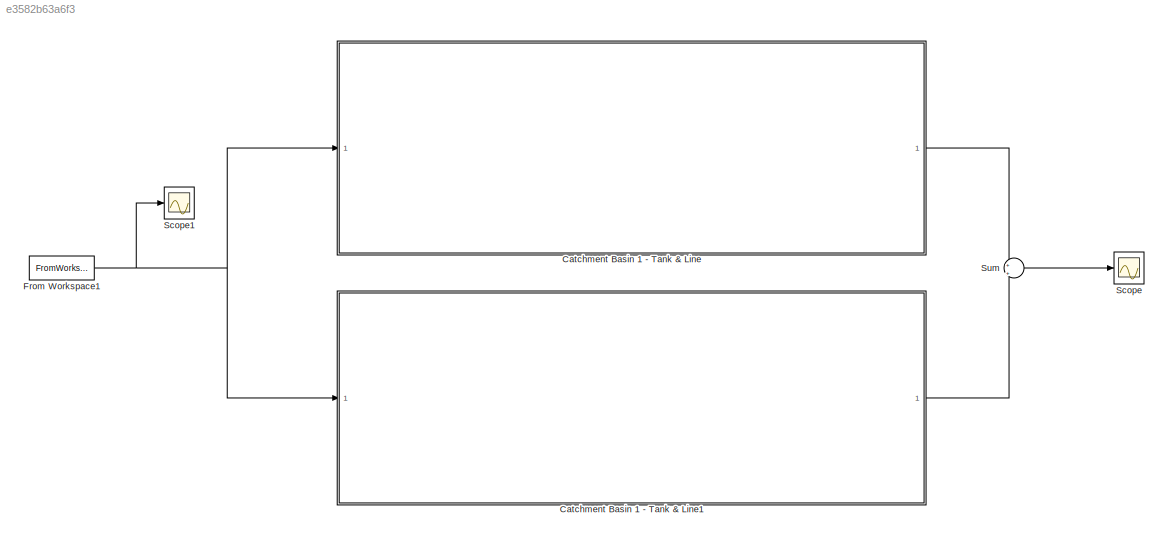
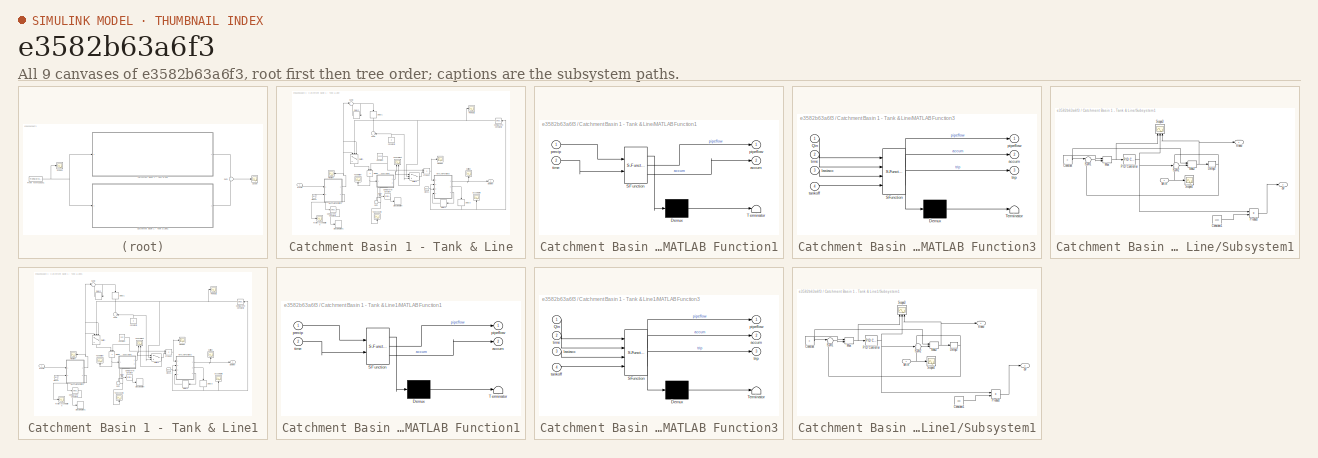
[diagram: thumbnail index - all 9 canvases of the model, root first then tree order]
MODEL slx_e3582b63a6f3
KIND model
CONFIG AbsTol = auto
CONFIG EnableMultiTasking = off
CONFIG FixedStep = auto
CONFIG MaxStep = auto
CONFIG MinStep = auto
CONFIG RelTol = 1e-3
CONFIG SampleTimeConstraint = Unconstrained
CONFIG Solver = VariableStepAuto
CONFIG SolverName = VariableStepAuto
CONFIG StartTime = 0.0
CONFIG StopTime = 359
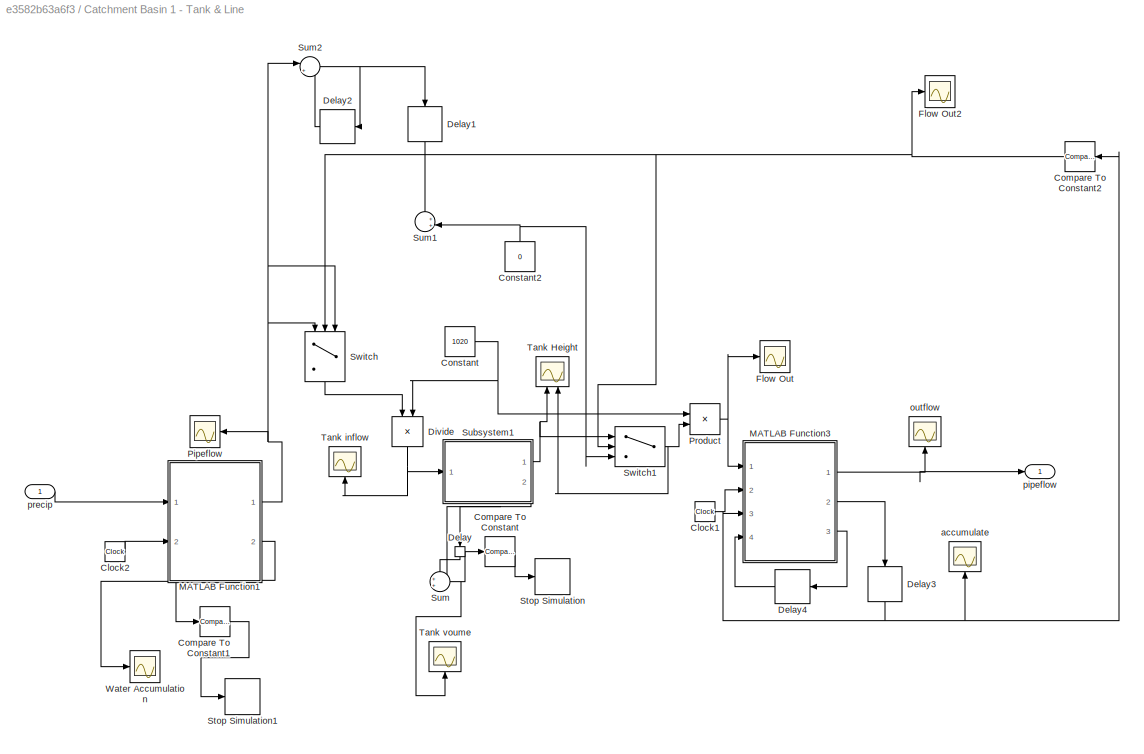
BLOCK [SubSystem] Catchment Basin 1 - Tank & Line
  Ports = [1, 1]
  RequestExecContextInheritance = off
BLOCK [Scope] Catchment Basin 1 - Tank & Line/ Pipeflow
  Floating = off
  NumInputPorts = 1
  Ports = [1]
  ScopeSpecificationString = Simulink.scopes.TimeScopeBlockCfg('CurrentConfiguration', extmgr.ConfigurationSet(extmgr.Configuration('Core','General UI',true),extmgr.Configuration('Core','Source UI',true),extmgr.Configuration('Sources','WiredSimulink',true,'DataLoggingVariableName','ScopeData3'),extmgr.Configuration('Visuals','Time Domain',true,'SerializedDisplays',{struct('MinYLimReal','-0.00186','MaxYLimReal','0.01489','YLab...<+1412ch>
BLOCK [Clock] Catchment Basin 1 - Tank & Line/Clock1
BLOCK [Clock] Catchment Basin 1 - Tank & Line/Clock2
BLOCK [Reference] Catchment Basin 1 - Tank & Line/Compare To Constant  REF=simulink/Logic and Bit
Operations/Compare
To Constant
  Ports = [1, 1]
  SourceBlock = simulink/Logic and Bit\nOperations/Compare\nTo Constant
  SourceProductBaseCode = SL
  SourceType = Compare To Constant
BLOCK [Reference] Catchment Basin 1 - Tank & Line/Compare To Constant1  REF=simulink/Logic and Bit
Operations/Compare
To Constant
  Commented = on
  Ports = [1, 1]
  SourceBlock = simulink/Logic and Bit\nOperations/Compare\nTo Constant
  SourceProductBaseCode = SL
  SourceType = Compare To Constant
BLOCK [Reference] Catchment Basin 1 - Tank & Line/Compare To Constant2  REF=simulink/Logic and Bit
Operations/Compare
To Constant
  Ports = [1, 1]
  SourceBlock = simulink/Logic and Bit\nOperations/Compare\nTo Constant
  SourceProductBaseCode = SL
  SourceType = Compare To Constant
BLOCK [Constant] Catchment Basin 1 - Tank & Line/Constant
  Value = 1020
BLOCK [Constant] Catchment Basin 1 - Tank & Line/Constant2
  NameLocation = right
  SampleTime = 1
  Value = 0
BLOCK [Delay] Catchment Basin 1 - Tank & Line/Delay
  DelayLength = 1
  InitialCondition = 0
  InputPortMap = u0
  NameLocation = left
  Ports = [1, 1]
BLOCK [Delay] Catchment Basin 1 - Tank & Line/Delay1
  DelayLength = 5
  InitialCondition = 0
  InputPortMap = u0
  NameLocation = left
  Ports = [1, 1]
BLOCK [Delay] Catchment Basin 1 - Tank & Line/Delay2
  DelayLength = 1
  InitialCondition = 0
  InputPortMap = u0
  Ports = [1, 1]
BLOCK [Delay] Catchment Basin 1 - Tank & Line/Delay3
  DelayLength = 1
  InitialCondition = 0
  InputPortMap = u0
  NameLocation = right
  Ports = [1, 1]
BLOCK [Delay] Catchment Basin 1 - Tank & Line/Delay4
  DelayLength = 1
  InitialCondition = 0
  InputPortMap = u0
  Ports = [1, 1]
BLOCK [Product] Catchment Basin 1 - Tank & Line/Divide
  Inputs = */
  NameLocation = left
  Ports = [2, 1]
BLOCK [Scope] Catchment Basin 1 - Tank & Line/Flow Out
  Floating = off
  NumInputPorts = 1
  Ports = [1]
  ScopeSpecificationString = Simulink.scopes.TimeScopeBlockCfg('CurrentConfiguration', extmgr.ConfigurationSet(extmgr.Configuration('Core','General UI',true),extmgr.Configuration('Core','Source UI',true),extmgr.Configuration('Sources','WiredSimulink',true,'DataLoggingVariableName','ScopeData1'),extmgr.Configuration('Visuals','Time Domain',true,'SerializedDisplays',{struct('MinYLimReal','-0.00806','MaxYLimReal','0.07253','YLab...<+1420ch>
BLOCK [Scope] Catchment Basin 1 - Tank & Line/Flow Out2
  Floating = off
  NumInputPorts = 1
  Ports = [1]
  ScopeSpecificationString = Simulink.scopes.TimeScopeBlockCfg('CurrentConfiguration', extmgr.ConfigurationSet(extmgr.Configuration('Core','General UI',true),extmgr.Configuration('Core','Source UI',true),extmgr.Configuration('Sources','WiredSimulink',true,'DataLoggingVariableName','ScopeData1'),extmgr.Configuration('Visuals','Time Domain',true,'SerializedDisplays',{struct('MinYLimReal','0.9','MaxYLimReal','1.1','YLabelReal','...<+1409ch>
BLOCK [SubSystem] Catchment Basin 1 - Tank & Line/MATLAB Function1
  ErrorFcn = Stateflow.Translate.translate
  PermitHierarchicalResolution = ExplicitOnly
  Ports = [2, 2]
  RequestExecContextInheritance = off
  SFBlockType = MATLAB Function
  TreatAsAtomicUnit = on
BLOCK [Demux] Catchment Basin 1 - Tank & Line/MATLAB Function1/ Demux 
  Outputs = 1
  Ports = [1, 1]
BLOCK [S-Function] Catchment Basin 1 - Tank & Line/MATLAB Function1/ SFunction 
  EnableBusSupport = on
  FunctionName = sf_sfun
  Parameters = R,S,basin1,k,n
  PortCounts = [2 3]
  Ports = [2, 3]
  SFcnIsStateOwnerBlock = off
  SFunctionDeploymentMode = off
  Tag = Stateflow S-Function 1
BLOCK [Terminator] Catchment Basin 1 - Tank & Line/MATLAB Function1/ Terminator 
BLOCK [Outport] Catchment Basin 1 - Tank & Line/MATLAB Function1/accum
  Port = 2
BLOCK [Outport] Catchment Basin 1 - Tank & Line/MATLAB Function1/pipeflow
BLOCK [Inport] Catchment Basin 1 - Tank & Line/MATLAB Function1/precip
BLOCK [Inport] Catchment Basin 1 - Tank & Line/MATLAB Function1/time
  Port = 2
BLOCK [SubSystem] Catchment Basin 1 - Tank & Line/MATLAB Function3
  ErrorFcn = Stateflow.Translate.translate
  PermitHierarchicalResolution = ExplicitOnly
  Ports = [4, 3]
  RequestExecContextInheritance = off
  SFBlockType = MATLAB Function
  TreatAsAtomicUnit = on
BLOCK [Demux] Catchment Basin 1 - Tank & Line/MATLAB Function3/ Demux 
  Outputs = 1
  Ports = [1, 1]
BLOCK [S-Function] Catchment Basin 1 - Tank & Line/MATLAB Function3/ SFunction 
  EnableBusSupport = on
  FunctionName = sf_sfun
  Parameters = R,S,k,n
  PortCounts = [4 4]
  Ports = [4, 4]
  SFcnIsStateOwnerBlock = off
  SFunctionDeploymentMode = off
  Tag = Stateflow S-Function 5
BLOCK [Terminator] Catchment Basin 1 - Tank & Line/MATLAB Function3/ Terminator 
BLOCK [Inport] Catchment Basin 1 - Tank & Line/MATLAB Function3/Qin
BLOCK [Outport] Catchment Basin 1 - Tank & Line/MATLAB Function3/accum
  Port = 2
BLOCK [Inport] Catchment Basin 1 - Tank & Line/MATLAB Function3/lastacc
  Port = 3
BLOCK [Outport] Catchment Basin 1 - Tank & Line/MATLAB Function3/pipeflow
BLOCK [Inport] Catchment Basin 1 - Tank & Line/MATLAB Function3/tankoff
  Port = 4
BLOCK [Inport] Catchment Basin 1 - Tank & Line/MATLAB Function3/time
  Port = 2
BLOCK [Outport] Catchment Basin 1 - Tank & Line/MATLAB Function3/trip
  Port = 3
BLOCK [Product] Catchment Basin 1 - Tank & Line/Product
  Ports = [2, 1]
BLOCK [Stop] Catchment Basin 1 - Tank & Line/Stop Simulation
BLOCK [Stop] Catchment Basin 1 - Tank & Line/Stop Simulation1
  Commented = on
BLOCK [SubSystem] Catchment Basin 1 - Tank & Line/Subsystem1
  PortSchema = {"entries":[{"content":{"sides":[{"content":{"connectorIds":["In1"]},"type":"ConnectorPlacement.EquallySpacedRectSide","uuid":"49521410-f26e-428f-a0f4-6065ef8c5de4"},{"content":{"connectorIds":["Out1"],"side":"RIGHT"},"type":"ConnectorPlacement.EquallySpacedRectSide","uuid":"23e51712-c361-47eb-a12a-34fba58dacf0"},{"content":{"connectorIds":[],"side":"TOP"},"type":"ConnectorPlacement.EquallySpacedR...<+392ch>
  Ports = [1, 2]
  RequestExecContextInheritance = off
BLOCK [Constant] Catchment Basin 1 - Tank & Line/Subsystem1/Constant
  Value = 0
BLOCK [Constant] Catchment Basin 1 - Tank & Line/Subsystem1/Constant1
  Value = 1020
BLOCK [Delay] Catchment Basin 1 - Tank & Line/Subsystem1/Delay2
  DelayLength = 1
  InitialCondition = 0
  InputPortMap = u0
  Ports = [1, 1]
BLOCK [MinMax] Catchment Basin 1 - Tank & Line/Subsystem1/Max
  Function = max
  Inputs = 2
  Ports = [2, 1]
BLOCK [MinMax] Catchment Basin 1 - Tank & Line/Subsystem1/Max2
  Function = max
  Inputs = 2
  Ports = [2, 1]
BLOCK [Reference] Catchment Basin 1 - Tank & Line/Subsystem1/PID Controller  REF=simulink/Continuous/PID Controller
  Ports = [1, 1]
  SourceBlock = simulink/Continuous/PID Controller
  SourceProductBaseCode = SL
  SourceType = PID 1dof
BLOCK [Product] Catchment Basin 1 - Tank & Line/Subsystem1/Product
  Ports = [2, 1]
BLOCK [Scope] Catchment Basin 1 - Tank & Line/Subsystem1/Scope3
  Floating = off
  NameLocation = right
  NumInputPorts = 3
  Ports = [3]
  ScopeSpecificationString = Simulink.scopes.TimeScopeBlockCfg('CurrentConfiguration', extmgr.ConfigurationSet(extmgr.Configuration('Core','General UI',true),extmgr.Configuration('Core','Source UI',true),extmgr.Configuration('Sources','WiredSimulink',true,'DataLoggingVariableName','ScopeData3'),extmgr.Configuration('Visuals','Time Domain',true,'SerializedDisplays',{struct('MinYLimReal','-0.000008','MaxYLimReal','0.000071','YL...<+1423ch>
BLOCK [Scope] Catchment Basin 1 - Tank & Line/Subsystem1/Scope4
  Floating = off
  NumInputPorts = 1
  Ports = [1]
  ScopeSpecificationString = Simulink.scopes.TimeScopeBlockCfg('CurrentConfiguration', extmgr.ConfigurationSet(extmgr.Configuration('Core','General UI',true),extmgr.Configuration('Core','Source UI',true),extmgr.Configuration('Sources','WiredSimulink',true,'DataLoggingVariableName','ScopeData4'),extmgr.Configuration('Visuals','Time Domain',true,'SerializedDisplays',{struct('MinYLimReal','-0.000002','MaxYLimReal','0.000015','YL...<+1435ch>
BLOCK [Sum] Catchment Basin 1 - Tank & Line/Subsystem1/Sum1
  Inputs = |-+
  OutMin = 0
  Ports = [2, 1]
BLOCK [Sum] Catchment Basin 1 - Tank & Line/Subsystem1/Sum2
  Inputs = +-+
  OutMin = 0
  Ports = [3, 1]
BLOCK [Outport] Catchment Basin 1 - Tank & Line/Subsystem1/dV
  Port = 2
BLOCK [Inport] Catchment Basin 1 - Tank & Line/Subsystem1/dh in
BLOCK [Outport] Catchment Basin 1 - Tank & Line/Subsystem1/h new
BLOCK [Sum] Catchment Basin 1 - Tank & Line/Sum
  Inputs = ++|
  Ports = [2, 1]
BLOCK [Sum] Catchment Basin 1 - Tank & Line/Sum1
  Inputs = ++|
  Ports = [2, 1]
BLOCK [Sum] Catchment Basin 1 - Tank & Line/Sum2
  Inputs = |++
  Ports = [2, 1]
BLOCK [Switch] Catchment Basin 1 - Tank & Line/Switch
  Criteria = u2 > Threshold
  InputSameDT = off
  NameLocation = right
  SaturateOnIntegerOverflow = off
BLOCK [Switch] Catchment Basin 1 - Tank & Line/Switch1
  Criteria = u2 > Threshold
  InputSameDT = off
  SaturateOnIntegerOverflow = off
BLOCK [Scope] Catchment Basin 1 - Tank & Line/Tank Height
  Floating = off
  NameLocation = right
  NumInputPorts = 2
  Ports = [2]
  ScopeSpecificationString = Simulink.scopes.TimeScopeBlockCfg('CurrentConfiguration', extmgr.ConfigurationSet(extmgr.Configuration('Core','General UI',true),extmgr.Configuration('Core','Source UI',true),extmgr.Configuration('Sources','WiredSimulink',true,'DataLoggingVariableName','ScopeData2'),extmgr.Configuration('Visuals','Time Domain',true,'SerializedDisplays',{struct('MinYLimReal','-0.000008','MaxYLimReal','0.000071','YL...<+1417ch>
BLOCK [Scope] Catchment Basin 1 - Tank & Line/Tank inflow
  Floating = off
  NameLocation = right
  NumInputPorts = 1
  Ports = [1]
  ScopeSpecificationString = Simulink.scopes.TimeScopeBlockCfg('CurrentConfiguration', extmgr.ConfigurationSet(extmgr.Configuration('Core','General UI',true),extmgr.Configuration('Core','Source UI',true),extmgr.Configuration('Sources','WiredSimulink',true,'DataLoggingVariableName','ScopeData4'),extmgr.Configuration('Visuals','Time Domain',true,'SerializedDisplays',{struct('MinYLimReal','-0.000002','MaxYLimReal','0.000015','YL...<+1402ch>
BLOCK [Scope] Catchment Basin 1 - Tank & Line/Tank voume
  Floating = off
  NameLocation = right
  NumInputPorts = 1
  Ports = [1]
  ScopeSpecificationString = Simulink.scopes.TimeScopeBlockCfg('CurrentConfiguration', extmgr.ConfigurationSet(extmgr.Configuration('Core','General UI',true),extmgr.Configuration('Core','Source UI',true),extmgr.Configuration('Sources','WiredSimulink',true,'DataLoggingVariableName','ScopeData5'),extmgr.Configuration('Visuals','Time Domain',true,'SerializedDisplays',{struct('MinYLimReal','-0.00335','MaxYLimReal','0.03017','YLab...<+1417ch>
BLOCK [Scope] Catchment Basin 1 - Tank & Line/Water Accumulation
  Floating = off
  NumInputPorts = 1
  Ports = [1]
  ScopeSpecificationString = Simulink.scopes.TimeScopeBlockCfg('CurrentConfiguration', extmgr.ConfigurationSet(extmgr.Configuration('Core','General UI',true),extmgr.Configuration('Core','Source UI',true),extmgr.Configuration('Sources','WiredSimulink',true,'DataLoggingVariableName','ScopeData4'),extmgr.Configuration('Visuals','Time Domain',true,'SerializedDisplays',{struct('MinYLimReal','6076139.76042','MaxYLimReal','278879276...<+1482ch>
BLOCK [Scope] Catchment Basin 1 - Tank & Line/accumulate
  Floating = off
  NameLocation = right
  NumInputPorts = 1
  Ports = [1]
  ScopeSpecificationString = Simulink.scopes.TimeScopeBlockCfg('CurrentConfiguration', extmgr.ConfigurationSet(extmgr.Configuration('Core','General UI',true),extmgr.Configuration('Core','Source UI',true),extmgr.Configuration('Sources','WiredSimulink',true,'DataLoggingVariableName','ScopeData3'),extmgr.Configuration('Visuals','Time Domain',true,'SerializedDisplays',{struct('MinYLimReal','-1.86851','MaxYLimReal','16.81657','YLa...<+1424ch>
BLOCK [Scope] Catchment Basin 1 - Tank & Line/outflow
  Floating = off
  NameLocation = right
  NumInputPorts = 1
  Ports = [1]
  ScopeSpecificationString = Simulink.scopes.TimeScopeBlockCfg('CurrentConfiguration', extmgr.ConfigurationSet(extmgr.Configuration('Core','General UI',true),extmgr.Configuration('Core','Source UI',true),extmgr.Configuration('Sources','WiredSimulink',true,'DataLoggingVariableName','ScopeData2'),extmgr.Configuration('Visuals','Time Domain',true,'SerializedDisplays',{struct('MinYLimReal','-0.00165','MaxYLimReal','0.01486','YLab...<+1413ch>
BLOCK [Outport] Catchment Basin 1 - Tank & Line/pipeflow
BLOCK [Inport] Catchment Basin 1 - Tank & Line/precip
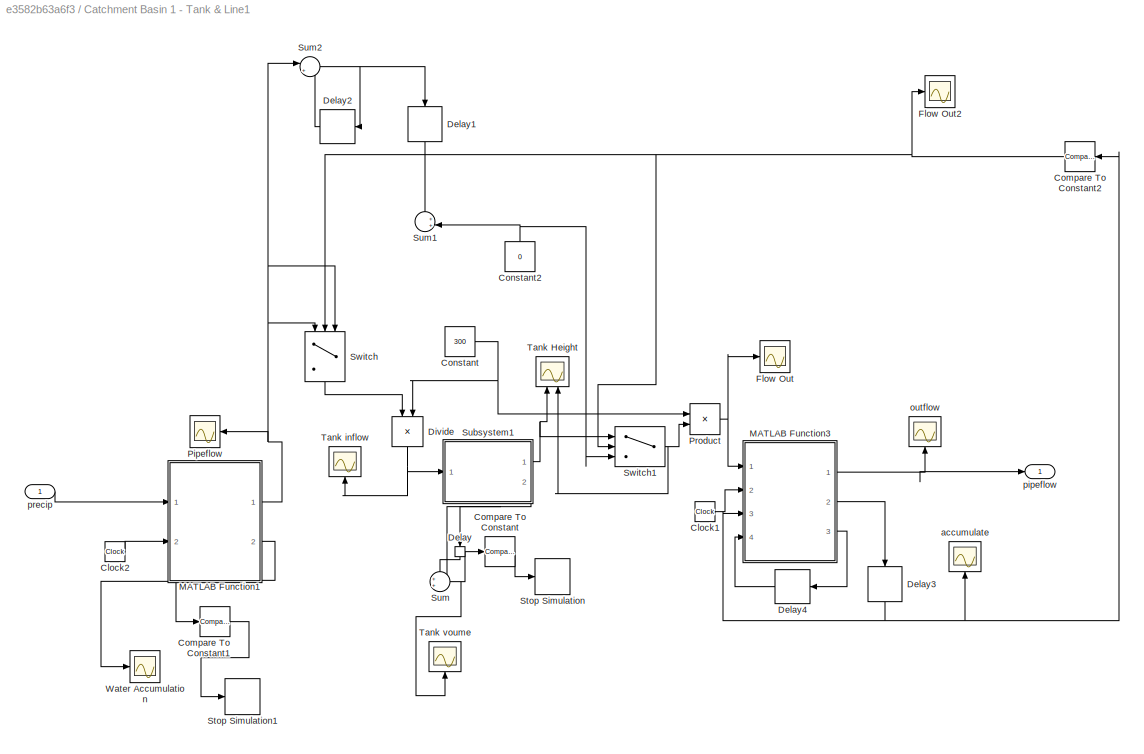
BLOCK [SubSystem] Catchment Basin 1 - Tank & Line1
  Ports = [1, 1]
  RequestExecContextInheritance = off
BLOCK [Scope] Catchment Basin 1 - Tank & Line1/ Pipeflow
  Floating = off
  NumInputPorts = 1
  Ports = [1]
  ScopeSpecificationString = Simulink.scopes.TimeScopeBlockCfg('CurrentConfiguration', extmgr.ConfigurationSet(extmgr.Configuration('Core','General UI',true),extmgr.Configuration('Core','Source UI',true),extmgr.Configuration('Sources','WiredSimulink',true,'DataLoggingVariableName','ScopeData3'),extmgr.Configuration('Visuals','Time Domain',true,'SerializedDisplays',{struct('MinYLimReal','-0.00186','MaxYLimReal','0.01489','YLab...<+1412ch>
BLOCK [Clock] Catchment Basin 1 - Tank & Line1/Clock1
BLOCK [Clock] Catchment Basin 1 - Tank & Line1/Clock2
BLOCK [Reference] Catchment Basin 1 - Tank & Line1/Compare To Constant  REF=simulink/Logic and Bit
Operations/Compare
To Constant
  Ports = [1, 1]
  SourceBlock = simulink/Logic and Bit\nOperations/Compare\nTo Constant
  SourceProductBaseCode = SL
  SourceType = Compare To Constant
BLOCK [Reference] Catchment Basin 1 - Tank & Line1/Compare To Constant1  REF=simulink/Logic and Bit
Operations/Compare
To Constant
  Commented = on
  Ports = [1, 1]
  SourceBlock = simulink/Logic and Bit\nOperations/Compare\nTo Constant
  SourceProductBaseCode = SL
  SourceType = Compare To Constant
BLOCK [Reference] Catchment Basin 1 - Tank & Line1/Compare To Constant2  REF=simulink/Logic and Bit
Operations/Compare
To Constant
  Ports = [1, 1]
  SourceBlock = simulink/Logic and Bit\nOperations/Compare\nTo Constant
  SourceProductBaseCode = SL
  SourceType = Compare To Constant
BLOCK [Constant] Catchment Basin 1 - Tank & Line1/Constant
  Value = 300
BLOCK [Constant] Catchment Basin 1 - Tank & Line1/Constant2
  NameLocation = right
  SampleTime = 1
  Value = 0
BLOCK [Delay] Catchment Basin 1 - Tank & Line1/Delay
  DelayLength = 1
  InitialCondition = 0
  InputPortMap = u0
  NameLocation = left
  Ports = [1, 1]
BLOCK [Delay] Catchment Basin 1 - Tank & Line1/Delay1
  DelayLength = 5
  InitialCondition = 0
  InputPortMap = u0
  NameLocation = left
  Ports = [1, 1]
BLOCK [Delay] Catchment Basin 1 - Tank & Line1/Delay2
  DelayLength = 1
  InitialCondition = 0
  InputPortMap = u0
  Ports = [1, 1]
BLOCK [Delay] Catchment Basin 1 - Tank & Line1/Delay3
  DelayLength = 1
  InitialCondition = 0
  InputPortMap = u0
  NameLocation = right
  Ports = [1, 1]
BLOCK [Delay] Catchment Basin 1 - Tank & Line1/Delay4
  DelayLength = 1
  InitialCondition = 0
  InputPortMap = u0
  Ports = [1, 1]
BLOCK [Product] Catchment Basin 1 - Tank & Line1/Divide
  Inputs = */
  NameLocation = left
  Ports = [2, 1]
BLOCK [Scope] Catchment Basin 1 - Tank & Line1/Flow Out
  Floating = off
  NumInputPorts = 1
  Ports = [1]
  ScopeSpecificationString = Simulink.scopes.TimeScopeBlockCfg('CurrentConfiguration', extmgr.ConfigurationSet(extmgr.Configuration('Core','General UI',true),extmgr.Configuration('Core','Source UI',true),extmgr.Configuration('Sources','WiredSimulink',true,'DataLoggingVariableName','ScopeData1'),extmgr.Configuration('Visuals','Time Domain',true,'SerializedDisplays',{struct('MinYLimReal','-0.00806','MaxYLimReal','0.07253','YLab...<+1420ch>
BLOCK [Scope] Catchment Basin 1 - Tank & Line1/Flow Out2
  Floating = off
  NumInputPorts = 1
  Ports = [1]
  ScopeSpecificationString = Simulink.scopes.TimeScopeBlockCfg('CurrentConfiguration', extmgr.ConfigurationSet(extmgr.Configuration('Core','General UI',true),extmgr.Configuration('Core','Source UI',true),extmgr.Configuration('Sources','WiredSimulink',true,'DataLoggingVariableName','ScopeData1'),extmgr.Configuration('Visuals','Time Domain',true,'SerializedDisplays',{struct('MinYLimReal','0.9','MaxYLimReal','1.1','YLabelReal','...<+1409ch>
BLOCK [SubSystem] Catchment Basin 1 - Tank & Line1/MATLAB Function1
  ErrorFcn = Stateflow.Translate.translate
  PermitHierarchicalResolution = ExplicitOnly
  Ports = [2, 2]
  RequestExecContextInheritance = off
  SFBlockType = MATLAB Function
  TreatAsAtomicUnit = on
BLOCK [Demux] Catchment Basin 1 - Tank & Line1/MATLAB Function1/ Demux 
  Outputs = 1
  Ports = [1, 1]
BLOCK [S-Function] Catchment Basin 1 - Tank & Line1/MATLAB Function1/ SFunction 
  EnableBusSupport = on
  FunctionName = sf_sfun
  Parameters = R,S,basin1,k,n
  PortCounts = [2 3]
  Ports = [2, 3]
  SFcnIsStateOwnerBlock = off
  SFunctionDeploymentMode = off
  Tag = Stateflow S-Function 2
BLOCK [Terminator] Catchment Basin 1 - Tank & Line1/MATLAB Function1/ Terminator 
BLOCK [Outport] Catchment Basin 1 - Tank & Line1/MATLAB Function1/accum
  Port = 2
BLOCK [Outport] Catchment Basin 1 - Tank & Line1/MATLAB Function1/pipeflow
BLOCK [Inport] Catchment Basin 1 - Tank & Line1/MATLAB Function1/precip
BLOCK [Inport] Catchment Basin 1 - Tank & Line1/MATLAB Function1/time
  Port = 2
BLOCK [SubSystem] Catchment Basin 1 - Tank & Line1/MATLAB Function3
  ErrorFcn = Stateflow.Translate.translate
  PermitHierarchicalResolution = ExplicitOnly
  Ports = [4, 3]
  RequestExecContextInheritance = off
  SFBlockType = MATLAB Function
  TreatAsAtomicUnit = on
BLOCK [Demux] Catchment Basin 1 - Tank & Line1/MATLAB Function3/ Demux 
  Outputs = 1
  Ports = [1, 1]
BLOCK [S-Function] Catchment Basin 1 - Tank & Line1/MATLAB Function3/ SFunction 
  EnableBusSupport = on
  FunctionName = sf_sfun
  Parameters = R,S,k,n
  PortCounts = [4 4]
  Ports = [4, 4]
  SFcnIsStateOwnerBlock = off
  SFunctionDeploymentMode = off
  Tag = Stateflow S-Function 3
BLOCK [Terminator] Catchment Basin 1 - Tank & Line1/MATLAB Function3/ Terminator 
BLOCK [Inport] Catchment Basin 1 - Tank & Line1/MATLAB Function3/Qin
BLOCK [Outport] Catchment Basin 1 - Tank & Line1/MATLAB Function3/accum
  Port = 2
BLOCK [Inport] Catchment Basin 1 - Tank & Line1/MATLAB Function3/lastacc
  Port = 3
BLOCK [Outport] Catchment Basin 1 - Tank & Line1/MATLAB Function3/pipeflow
BLOCK [Inport] Catchment Basin 1 - Tank & Line1/MATLAB Function3/tankoff
  Port = 4
BLOCK [Inport] Catchment Basin 1 - Tank & Line1/MATLAB Function3/time
  Port = 2
BLOCK [Outport] Catchment Basin 1 - Tank & Line1/MATLAB Function3/trip
  Port = 3
BLOCK [Product] Catchment Basin 1 - Tank & Line1/Product
  Ports = [2, 1]
BLOCK [Stop] Catchment Basin 1 - Tank & Line1/Stop Simulation
BLOCK [Stop] Catchment Basin 1 - Tank & Line1/Stop Simulation1
  Commented = on
BLOCK [SubSystem] Catchment Basin 1 - Tank & Line1/Subsystem1
  PortSchema = {"entries":[{"content":{"sides":[{"content":{"connectorIds":["In1"]},"type":"ConnectorPlacement.EquallySpacedRectSide","uuid":"49521410-f26e-428f-a0f4-6065ef8c5de4"},{"content":{"connectorIds":["Out1"],"side":"RIGHT"},"type":"ConnectorPlacement.EquallySpacedRectSide","uuid":"23e51712-c361-47eb-a12a-34fba58dacf0"},{"content":{"connectorIds":[],"side":"TOP"},"type":"ConnectorPlacement.EquallySpacedR...<+392ch>
  Ports = [1, 2]
  RequestExecContextInheritance = off
BLOCK [Constant] Catchment Basin 1 - Tank & Line1/Subsystem1/Constant
  Value = 0
BLOCK [Constant] Catchment Basin 1 - Tank & Line1/Subsystem1/Constant1
  Value = 300
BLOCK [Delay] Catchment Basin 1 - Tank & Line1/Subsystem1/Delay2
  DelayLength = 1
  InitialCondition = 0
  InputPortMap = u0
  Ports = [1, 1]
BLOCK [MinMax] Catchment Basin 1 - Tank & Line1/Subsystem1/Max
  Function = max
  Inputs = 2
  Ports = [2, 1]
BLOCK [MinMax] Catchment Basin 1 - Tank & Line1/Subsystem1/Max2
  Function = max
  Inputs = 2
  Ports = [2, 1]
BLOCK [Reference] Catchment Basin 1 - Tank & Line1/Subsystem1/PID Controller  REF=simulink/Continuous/PID Controller
  Ports = [1, 1]
  SourceBlock = simulink/Continuous/PID Controller
  SourceProductBaseCode = SL
  SourceType = PID 1dof
BLOCK [Product] Catchment Basin 1 - Tank & Line1/Subsystem1/Product
  Ports = [2, 1]
BLOCK [Scope] Catchment Basin 1 - Tank & Line1/Subsystem1/Scope3
  Floating = off
  NameLocation = right
  NumInputPorts = 3
  Ports = [3]
  ScopeSpecificationString = Simulink.scopes.TimeScopeBlockCfg('CurrentConfiguration', extmgr.ConfigurationSet(extmgr.Configuration('Core','General UI',true),extmgr.Configuration('Core','Source UI',true),extmgr.Configuration('Sources','WiredSimulink',true,'DataLoggingVariableName','ScopeData3'),extmgr.Configuration('Visuals','Time Domain',true,'SerializedDisplays',{struct('MinYLimReal','-0.000008','MaxYLimReal','0.000071','YL...<+1423ch>
BLOCK [Scope] Catchment Basin 1 - Tank & Line1/Subsystem1/Scope4
  Floating = off
  NumInputPorts = 1
  Ports = [1]
  ScopeSpecificationString = Simulink.scopes.TimeScopeBlockCfg('CurrentConfiguration', extmgr.ConfigurationSet(extmgr.Configuration('Core','General UI',true),extmgr.Configuration('Core','Source UI',true),extmgr.Configuration('Sources','WiredSimulink',true,'DataLoggingVariableName','ScopeData4'),extmgr.Configuration('Visuals','Time Domain',true,'SerializedDisplays',{struct('MinYLimReal','-0.000002','MaxYLimReal','0.000015','YL...<+1435ch>
BLOCK [Sum] Catchment Basin 1 - Tank & Line1/Subsystem1/Sum1
  Inputs = |-+
  OutMin = 0
  Ports = [2, 1]
BLOCK [Sum] Catchment Basin 1 - Tank & Line1/Subsystem1/Sum2
  Inputs = +-+
  OutMin = 0
  Ports = [3, 1]
BLOCK [Outport] Catchment Basin 1 - Tank & Line1/Subsystem1/dV
  Port = 2
BLOCK [Inport] Catchment Basin 1 - Tank & Line1/Subsystem1/dh in
BLOCK [Outport] Catchment Basin 1 - Tank & Line1/Subsystem1/h new
BLOCK [Sum] Catchment Basin 1 - Tank & Line1/Sum
  Inputs = ++|
  Ports = [2, 1]
BLOCK [Sum] Catchment Basin 1 - Tank & Line1/Sum1
  Inputs = ++|
  Ports = [2, 1]
BLOCK [Sum] Catchment Basin 1 - Tank & Line1/Sum2
  Inputs = |++
  Ports = [2, 1]
BLOCK [Switch] Catchment Basin 1 - Tank & Line1/Switch
  Criteria = u2 > Threshold
  InputSameDT = off
  NameLocation = right
  SaturateOnIntegerOverflow = off
BLOCK [Switch] Catchment Basin 1 - Tank & Line1/Switch1
  Criteria = u2 > Threshold
  InputSameDT = off
  SaturateOnIntegerOverflow = off
BLOCK [Scope] Catchment Basin 1 - Tank & Line1/Tank Height
  Floating = off
  NameLocation = right
  NumInputPorts = 2
  Ports = [2]
  ScopeSpecificationString = Simulink.scopes.TimeScopeBlockCfg('CurrentConfiguration', extmgr.ConfigurationSet(extmgr.Configuration('Core','General UI',true),extmgr.Configuration('Core','Source UI',true),extmgr.Configuration('Sources','WiredSimulink',true,'DataLoggingVariableName','ScopeData2'),extmgr.Configuration('Visuals','Time Domain',true,'SerializedDisplays',{struct('MinYLimReal','-0.000008','MaxYLimReal','0.000071','YL...<+1417ch>
BLOCK [Scope] Catchment Basin 1 - Tank & Line1/Tank inflow
  Floating = off
  NameLocation = right
  NumInputPorts = 1
  Ports = [1]
  ScopeSpecificationString = Simulink.scopes.TimeScopeBlockCfg('CurrentConfiguration', extmgr.ConfigurationSet(extmgr.Configuration('Core','General UI',true),extmgr.Configuration('Core','Source UI',true),extmgr.Configuration('Sources','WiredSimulink',true,'DataLoggingVariableName','ScopeData4'),extmgr.Configuration('Visuals','Time Domain',true,'SerializedDisplays',{struct('MinYLimReal','-0.000002','MaxYLimReal','0.000015','YL...<+1402ch>
BLOCK [Scope] Catchment Basin 1 - Tank & Line1/Tank voume
  Floating = off
  NameLocation = right
  NumInputPorts = 1
  Ports = [1]
  ScopeSpecificationString = Simulink.scopes.TimeScopeBlockCfg('CurrentConfiguration', extmgr.ConfigurationSet(extmgr.Configuration('Core','General UI',true),extmgr.Configuration('Core','Source UI',true),extmgr.Configuration('Sources','WiredSimulink',true,'DataLoggingVariableName','ScopeData5'),extmgr.Configuration('Visuals','Time Domain',true,'SerializedDisplays',{struct('MinYLimReal','-0.00335','MaxYLimReal','0.03017','YLab...<+1388ch>
BLOCK [Scope] Catchment Basin 1 - Tank & Line1/Water Accumulation
  Floating = off
  NumInputPorts = 1
  Ports = [1]
  ScopeSpecificationString = Simulink.scopes.TimeScopeBlockCfg('CurrentConfiguration', extmgr.ConfigurationSet(extmgr.Configuration('Core','General UI',true),extmgr.Configuration('Core','Source UI',true),extmgr.Configuration('Sources','WiredSimulink',true,'DataLoggingVariableName','ScopeData4'),extmgr.Configuration('Visuals','Time Domain',true,'SerializedDisplays',{struct('MinYLimReal','6076139.76042','MaxYLimReal','278879276...<+1482ch>
BLOCK [Scope] Catchment Basin 1 - Tank & Line1/accumulate
  Floating = off
  NameLocation = right
  NumInputPorts = 1
  Ports = [1]
  ScopeSpecificationString = Simulink.scopes.TimeScopeBlockCfg('CurrentConfiguration', extmgr.ConfigurationSet(extmgr.Configuration('Core','General UI',true),extmgr.Configuration('Core','Source UI',true),extmgr.Configuration('Sources','WiredSimulink',true,'DataLoggingVariableName','ScopeData3'),extmgr.Configuration('Visuals','Time Domain',true,'SerializedDisplays',{struct('MinYLimReal','-1.86851','MaxYLimReal','16.81657','YLa...<+1424ch>
BLOCK [Scope] Catchment Basin 1 - Tank & Line1/outflow
  Floating = off
  NameLocation = right
  NumInputPorts = 1
  Ports = [1]
  ScopeSpecificationString = Simulink.scopes.TimeScopeBlockCfg('CurrentConfiguration', extmgr.ConfigurationSet(extmgr.Configuration('Core','General UI',true),extmgr.Configuration('Core','Source UI',true),extmgr.Configuration('Sources','WiredSimulink',true,'DataLoggingVariableName','ScopeData2'),extmgr.Configuration('Visuals','Time Domain',true,'SerializedDisplays',{struct('MinYLimReal','-0.00165','MaxYLimReal','0.01486','YLab...<+1413ch>
BLOCK [Outport] Catchment Basin 1 - Tank & Line1/pipeflow
BLOCK [Inport] Catchment Basin 1 - Tank & Line1/precip
BLOCK [FromWorkspace] From Workspace1
  SampleTime = 1
  VariableName = worstCase
BLOCK [Scope] Scope
  Floating = off
  NumInputPorts = 1
  Ports = [1]
  ScopeSpecificationString = Simulink.scopes.TimeScopeBlockCfg('CurrentConfiguration', extmgr.ConfigurationSet(extmgr.Configuration('Core','General UI',true),extmgr.Configuration('Core','Source UI',true),extmgr.Configuration('Sources','WiredSimulink',true,'DataLoggingVariableName','ScopeData2','DataLoggingSaveFormat','Array','DataLoggingLimitDataPoints',true,'DataLoggingDecimation','1'),extmgr.Configuration('Visuals','Time Do...<+1632ch>
BLOCK [Scope] Scope1
  Floating = off
  NumInputPorts = 1
  Ports = [1]
  ScopeSpecificationString = Simulink.scopes.TimeScopeBlockCfg('CurrentConfiguration', extmgr.ConfigurationSet(extmgr.Configuration('Core','General UI',true),extmgr.Configuration('Core','Source UI',true),extmgr.Configuration('Sources','WiredSimulink',true,'DataLoggingVariableName','ScopeData3','DataLoggingSaveFormat','Array','DataLoggingLimitDataPoints',true,'DataLoggingDecimation','1'),extmgr.Configuration('Visuals','Time Do...<+1680ch>
BLOCK [Sum] Sum
  Inputs = +|+
  Ports = [2, 1]
LINE Catchment Basin 1 - Tank & Line/Clock1:1 -> Catchment Basin 1 - Tank & Line/MATLAB Function3:2
LINE Catchment Basin 1 - Tank & Line/Clock2:1 -> Catchment Basin 1 - Tank & Line/MATLAB Function1:2
LINE Catchment Basin 1 - Tank & Line/Compare To Constant1:1 -> Catchment Basin 1 - Tank & Line/Stop Simulation1:1
NET Catchment Basin 1 - Tank & Line/Compare To Constant2:1 -> Catchment Basin 1 - Tank & Line/Flow Out2:1, Catchment Basin 1 - Tank & Line/Switch1:2, Catchment Basin 1 - Tank & Line/Switch:2
LINE Catchment Basin 1 - Tank & Line/Compare To Constant:1 -> Catchment Basin 1 - Tank & Line/Stop Simulation:1
NET Catchment Basin 1 - Tank & Line/Constant2:1 -> Catchment Basin 1 - Tank & Line/Sum1:2, Catchment Basin 1 - Tank & Line/Switch1:3
NET Catchment Basin 1 - Tank & Line/Constant:1 -> Catchment Basin 1 - Tank & Line/Divide:2, Catchment Basin 1 - Tank & Line/Product:1
LINE Catchment Basin 1 - Tank & Line/Delay1:1 -> Catchment Basin 1 - Tank & Line/Sum1:1
LINE Catchment Basin 1 - Tank & Line/Delay2:1 -> Catchment Basin 1 - Tank & Line/Sum2:2
NET Catchment Basin 1 - Tank & Line/Delay3:1 -> Catchment Basin 1 - Tank & Line/Compare To Constant2:1, Catchment Basin 1 - Tank & Line/MATLAB Function3:3, Catchment Basin 1 - Tank & Line/accumulate:1
LINE Catchment Basin 1 - Tank & Line/Delay4:1 -> Catchment Basin 1 - Tank & Line/MATLAB Function3:4
LINE Catchment Basin 1 - Tank & Line/Delay:1 -> Catchment Basin 1 - Tank & Line/Sum:1
NET Catchment Basin 1 - Tank & Line/Divide:1 -> Catchment Basin 1 - Tank & Line/Subsystem1:1, Catchment Basin 1 - Tank & Line/Tank inflow:1
NET Catchment Basin 1 - Tank & Line/MATLAB Function1:1 -> Catchment Basin 1 - Tank & Line/ Pipeflow:1, Catchment Basin 1 - Tank & Line/Sum2:1, Catchment Basin 1 - Tank & Line/Switch:1, Catchment Basin 1 - Tank & Line/Switch:3
NET Catchment Basin 1 - Tank & Line/MATLAB Function1:2 -> Catchment Basin 1 - Tank & Line/Compare To Constant1:1, Catchment Basin 1 - Tank & Line/Water Accumulation:1
NET Catchment Basin 1 - Tank & Line/MATLAB Function3:1 -> Catchment Basin 1 - Tank & Line/outflow:1, Catchment Basin 1 - Tank & Line/pipeflow:1
LINE Catchment Basin 1 - Tank & Line/MATLAB Function3:2 -> Catchment Basin 1 - Tank & Line/Delay3:1
LINE Catchment Basin 1 - Tank & Line/MATLAB Function3:3 -> Catchment Basin 1 - Tank & Line/Delay4:1
NET Catchment Basin 1 - Tank & Line/Product:1 -> Catchment Basin 1 - Tank & Line/Flow Out:1, Catchment Basin 1 - Tank & Line/MATLAB Function3:1
LINE Catchment Basin 1 - Tank & Line/Subsystem1/Constant1:1 -> Catchment Basin 1 - Tank & Line/Subsystem1/Product:2
NET Catchment Basin 1 - Tank & Line/Subsystem1/Constant:1 -> Catchment Basin 1 - Tank & Line/Subsystem1/Max2:1, Catchment Basin 1 - Tank & Line/Subsystem1/Max:1, Catchment Basin 1 - Tank & Line/Subsystem1/Sum1:1
NET Catchment Basin 1 - Tank & Line/Subsystem1/Delay2:1 -> Catchment Basin 1 - Tank & Line/Subsystem1/Sum1:2, Catchment Basin 1 - Tank & Line/Subsystem1/Sum2:1
NET Catchment Basin 1 - Tank & Line/Subsystem1/Max2:1 -> Catchment Basin 1 - Tank & Line/Subsystem1/Delay2:1, Catchment Basin 1 - Tank & Line/Subsystem1/Scope3:3, Catchment Basin 1 - Tank & Line/Subsystem1/h new:1
NET Catchment Basin 1 - Tank & Line/Subsystem1/Max:1 -> Catchment Basin 1 - Tank & Line/Subsystem1/PID Controller:1, Catchment Basin 1 - Tank & Line/Subsystem1/Scope3:1
NET Catchment Basin 1 - Tank & Line/Subsystem1/PID Controller:1 -> Catchment Basin 1 - Tank & Line/Subsystem1/Product:1, Catchment Basin 1 - Tank & Line/Subsystem1/Scope3:2, Catchment Basin 1 - Tank & Line/Subsystem1/Sum2:2
LINE Catchment Basin 1 - Tank & Line/Subsystem1/Product:1 -> Catchment Basin 1 - Tank & Line/Subsystem1/dV:1
LINE Catchment Basin 1 - Tank & Line/Subsystem1/Sum1:1 -> Catchment Basin 1 - Tank & Line/Subsystem1/Max:2
LINE Catchment Basin 1 - Tank & Line/Subsystem1/Sum2:1 -> Catchment Basin 1 - Tank & Line/Subsystem1/Max2:2
NET Catchment Basin 1 - Tank & Line/Subsystem1/dh in:1 -> Catchment Basin 1 - Tank & Line/Subsystem1/Scope4:1, Catchment Basin 1 - Tank & Line/Subsystem1/Sum2:3
NET Catchment Basin 1 - Tank & Line/Subsystem1:1 -> Catchment Basin 1 - Tank & Line/Switch1:1, Catchment Basin 1 - Tank & Line/Tank Height:1
NET Catchment Basin 1 - Tank & Line/Subsystem1:2 -> Catchment Basin 1 - Tank & Line/Delay:1, Catchment Basin 1 - Tank & Line/Sum:2
NET Catchment Basin 1 - Tank & Line/Sum2:1 -> Catchment Basin 1 - Tank & Line/Delay1:1, Catchment Basin 1 - Tank & Line/Delay2:1
NET Catchment Basin 1 - Tank & Line/Sum:1 -> Catchment Basin 1 - Tank & Line/Compare To Constant:1, Catchment Basin 1 - Tank & Line/Tank voume:1
NET Catchment Basin 1 - Tank & Line/Switch1:1 -> Catchment Basin 1 - Tank & Line/Product:2, Catchment Basin 1 - Tank & Line/Tank Height:2
LINE Catchment Basin 1 - Tank & Line/Switch:1 -> Catchment Basin 1 - Tank & Line/Divide:1
LINE Catchment Basin 1 - Tank & Line/precip:1 -> Catchment Basin 1 - Tank & Line/MATLAB Function1:1
LINE Catchment Basin 1 - Tank & Line1/Clock1:1 -> Catchment Basin 1 - Tank & Line1/MATLAB Function3:2
LINE Catchment Basin 1 - Tank & Line1/Clock2:1 -> Catchment Basin 1 - Tank & Line1/MATLAB Function1:2
LINE Catchment Basin 1 - Tank & Line1/Compare To Constant1:1 -> Catchment Basin 1 - Tank & Line1/Stop Simulation1:1
NET Catchment Basin 1 - Tank & Line1/Compare To Constant2:1 -> Catchment Basin 1 - Tank & Line1/Flow Out2:1, Catchment Basin 1 - Tank & Line1/Switch1:2, Catchment Basin 1 - Tank & Line1/Switch:2
LINE Catchment Basin 1 - Tank & Line1/Compare To Constant:1 -> Catchment Basin 1 - Tank & Line1/Stop Simulation:1
NET Catchment Basin 1 - Tank & Line1/Constant2:1 -> Catchment Basin 1 - Tank & Line1/Sum1:2, Catchment Basin 1 - Tank & Line1/Switch1:3
NET Catchment Basin 1 - Tank & Line1/Constant:1 -> Catchment Basin 1 - Tank & Line1/Divide:2, Catchment Basin 1 - Tank & Line1/Product:1
LINE Catchment Basin 1 - Tank & Line1/Delay1:1 -> Catchment Basin 1 - Tank & Line1/Sum1:1
LINE Catchment Basin 1 - Tank & Line1/Delay2:1 -> Catchment Basin 1 - Tank & Line1/Sum2:2
NET Catchment Basin 1 - Tank & Line1/Delay3:1 -> Catchment Basin 1 - Tank & Line1/Compare To Constant2:1, Catchment Basin 1 - Tank & Line1/MATLAB Function3:3, Catchment Basin 1 - Tank & Line1/accumulate:1
LINE Catchment Basin 1 - Tank & Line1/Delay4:1 -> Catchment Basin 1 - Tank & Line1/MATLAB Function3:4
LINE Catchment Basin 1 - Tank & Line1/Delay:1 -> Catchment Basin 1 - Tank & Line1/Sum:1
NET Catchment Basin 1 - Tank & Line1/Divide:1 -> Catchment Basin 1 - Tank & Line1/Subsystem1:1, Catchment Basin 1 - Tank & Line1/Tank inflow:1
NET Catchment Basin 1 - Tank & Line1/MATLAB Function1:1 -> Catchment Basin 1 - Tank & Line1/ Pipeflow:1, Catchment Basin 1 - Tank & Line1/Sum2:1, Catchment Basin 1 - Tank & Line1/Switch:1, Catchment Basin 1 - Tank & Line1/Switch:3
NET Catchment Basin 1 - Tank & Line1/MATLAB Function1:2 -> Catchment Basin 1 - Tank & Line1/Compare To Constant1:1, Catchment Basin 1 - Tank & Line1/Water Accumulation:1
NET Catchment Basin 1 - Tank & Line1/MATLAB Function3:1 -> Catchment Basin 1 - Tank & Line1/outflow:1, Catchment Basin 1 - Tank & Line1/pipeflow:1
LINE Catchment Basin 1 - Tank & Line1/MATLAB Function3:2 -> Catchment Basin 1 - Tank & Line1/Delay3:1
LINE Catchment Basin 1 - Tank & Line1/MATLAB Function3:3 -> Catchment Basin 1 - Tank & Line1/Delay4:1
NET Catchment Basin 1 - Tank & Line1/Product:1 -> Catchment Basin 1 - Tank & Line1/Flow Out:1, Catchment Basin 1 - Tank & Line1/MATLAB Function3:1
LINE Catchment Basin 1 - Tank & Line1/Subsystem1/Constant1:1 -> Catchment Basin 1 - Tank & Line1/Subsystem1/Product:2
NET Catchment Basin 1 - Tank & Line1/Subsystem1/Constant:1 -> Catchment Basin 1 - Tank & Line1/Subsystem1/Max2:1, Catchment Basin 1 - Tank & Line1/Subsystem1/Max:1, Catchment Basin 1 - Tank & Line1/Subsystem1/Sum1:1
NET Catchment Basin 1 - Tank & Line1/Subsystem1/Delay2:1 -> Catchment Basin 1 - Tank & Line1/Subsystem1/Sum1:2, Catchment Basin 1 - Tank & Line1/Subsystem1/Sum2:1
NET Catchment Basin 1 - Tank & Line1/Subsystem1/Max2:1 -> Catchment Basin 1 - Tank & Line1/Subsystem1/Delay2:1, Catchment Basin 1 - Tank & Line1/Subsystem1/Scope3:3, Catchment Basin 1 - Tank & Line1/Subsystem1/h new:1
NET Catchment Basin 1 - Tank & Line1/Subsystem1/Max:1 -> Catchment Basin 1 - Tank & Line1/Subsystem1/PID Controller:1, Catchment Basin 1 - Tank & Line1/Subsystem1/Scope3:1
NET Catchment Basin 1 - Tank & Line1/Subsystem1/PID Controller:1 -> Catchment Basin 1 - Tank & Line1/Subsystem1/Product:1, Catchment Basin 1 - Tank & Line1/Subsystem1/Scope3:2, Catchment Basin 1 - Tank & Line1/Subsystem1/Sum2:2
LINE Catchment Basin 1 - Tank & Line1/Subsystem1/Product:1 -> Catchment Basin 1 - Tank & Line1/Subsystem1/dV:1
LINE Catchment Basin 1 - Tank & Line1/Subsystem1/Sum1:1 -> Catchment Basin 1 - Tank & Line1/Subsystem1/Max:2
LINE Catchment Basin 1 - Tank & Line1/Subsystem1/Sum2:1 -> Catchment Basin 1 - Tank & Line1/Subsystem1/Max2:2
NET Catchment Basin 1 - Tank & Line1/Subsystem1/dh in:1 -> Catchment Basin 1 - Tank & Line1/Subsystem1/Scope4:1, Catchment Basin 1 - Tank & Line1/Subsystem1/Sum2:3
NET Catchment Basin 1 - Tank & Line1/Subsystem1:1 -> Catchment Basin 1 - Tank & Line1/Switch1:1, Catchment Basin 1 - Tank & Line1/Tank Height:1
NET Catchment Basin 1 - Tank & Line1/Subsystem1:2 -> Catchment Basin 1 - Tank & Line1/Delay:1, Catchment Basin 1 - Tank & Line1/Sum:2
NET Catchment Basin 1 - Tank & Line1/Sum2:1 -> Catchment Basin 1 - Tank & Line1/Delay1:1, Catchment Basin 1 - Tank & Line1/Delay2:1
NET Catchment Basin 1 - Tank & Line1/Sum:1 -> Catchment Basin 1 - Tank & Line1/Compare To Constant:1, Catchment Basin 1 - Tank & Line1/Tank voume:1
NET Catchment Basin 1 - Tank & Line1/Switch1:1 -> Catchment Basin 1 - Tank & Line1/Product:2, Catchment Basin 1 - Tank & Line1/Tank Height:2
LINE Catchment Basin 1 - Tank & Line1/Switch:1 -> Catchment Basin 1 - Tank & Line1/Divide:1
LINE Catchment Basin 1 - Tank & Line1/precip:1 -> Catchment Basin 1 - Tank & Line1/MATLAB Function1:1
LINE Catchment Basin 1 - Tank & Line1:1 -> Sum:2
LINE Catchment Basin 1 - Tank & Line:1 -> Sum:1
NET From Workspace1:1 -> Catchment Basin 1 - Tank & Line1:1, Catchment Basin 1 - Tank & Line:1, Scope1:1
LINE Sum:1 -> Scope:1
note: NET lines group one-source signal fan-out (src -> all destinations, sorted); 1:1 wires keep LINE
CHART Catchment Basin 1 - Tank & Line/MATLAB Function1 states=1 transitions=1
  STATE_LABEL 'eML_blk_kernel()'
  STATE_LABEL 'SCRIPT:\nfunction [pipeflow, accum]  = pipeflow(precip, k, n, R, S, basin1, time)\n% v = k*n*R^0.63*S^.54\n% cross sectional area: pi*r^2\n% v = velocity; n = roughness; R = hydraulic radius; S = slope; k =\n% conversions\n\nv = k*n*R^0.63*S^.54; %should be \nAx = pi*R^2;\npipeflowMax = v*Ax; %pipe flow out is 4.82 m3/s\n% if water coming in is below max, it flows in normally\n% if above max, then it flows a...<+451ch>'
CHART Catchment Basin 1 - Tank & Line1/MATLAB Function1 states=1 transitions=1
  STATE_LABEL 'eML_blk_kernel()'
  STATE_LABEL 'SCRIPT:\nfunction [pipeflow, accum]  = pipeflow(precip, k, n, R, S, basin1, time)\n% v = k*n*R^0.63*S^.54\n% cross sectional area: pi*r^2\n% v = velocity; n = roughness; R = hydraulic radius; S = slope; k =\n% conversions\n\nv = k*n*R^0.63*S^.54; %should be \nAx = pi*R^2;\npipeflowMax = v*Ax; %pipe flow out is 4.82 m3/s\n% if water coming in is below max, it flows in normally\n% if above max, then it flows a...<+451ch>'
CHART Catchment Basin 1 - Tank & Line1/MATLAB Function3 states=1 transitions=1
  STATE_LABEL 'eML_blk_kernel()'
  STATE_LABEL 'SCRIPT:\nfunction [pipeflow, accum,trip] = pipeflow( Qin, k, n, R, S, time,lastacc,tankoff)\nv = k*n*R^0.63*S^.54; %ft/s\nqmax = v*(pi*R^2);\ntrip = tankoff;\nif Qin < qmax\n    pipeflow = Qin;\nelse\n    pipeflow = qmax;\nend\naccum = max((lastacc + (Qin-qmax)),0);\n% if Qin == 0 && lastacc > 0\n%     pipeflow = qmax;\n%     trip = 1;\n% end\n% if tankoff == 1\n%     lastacc = lastacc-60;\n%     accum = lastacc -...<+20ch>'
CHART Catchment Basin 1 - Tank & Line/MATLAB Function3 states=1 transitions=1
  STATE_LABEL 'eML_blk_kernel()'
  STATE_LABEL 'SCRIPT:\nfunction [pipeflow, accum,trip] = pipeflow( Qin, k, n, R, S, time,lastacc,tankoff)\nv = k*n*R^0.63*S^.54; %ft/s\nqmax = v*(pi*R^2);\ntrip = tankoff;\nif Qin < qmax\n    pipeflow = Qin;\nelse\n    pipeflow = qmax;\nend\naccum = max((lastacc + (Qin-qmax)),0);\n% if Qin == 0 && lastacc > 0\n%     pipeflow = qmax;\n%     trip = 1;\n% end\n% if tankoff == 1\n%     lastacc = lastacc-60;\n%     accum = lastacc -...<+20ch>'
CHART  states=0 transitions=0
CHART  states=0 transitions=0
CHART  states=0 transitions=0
CHART  states=0 transitions=0
